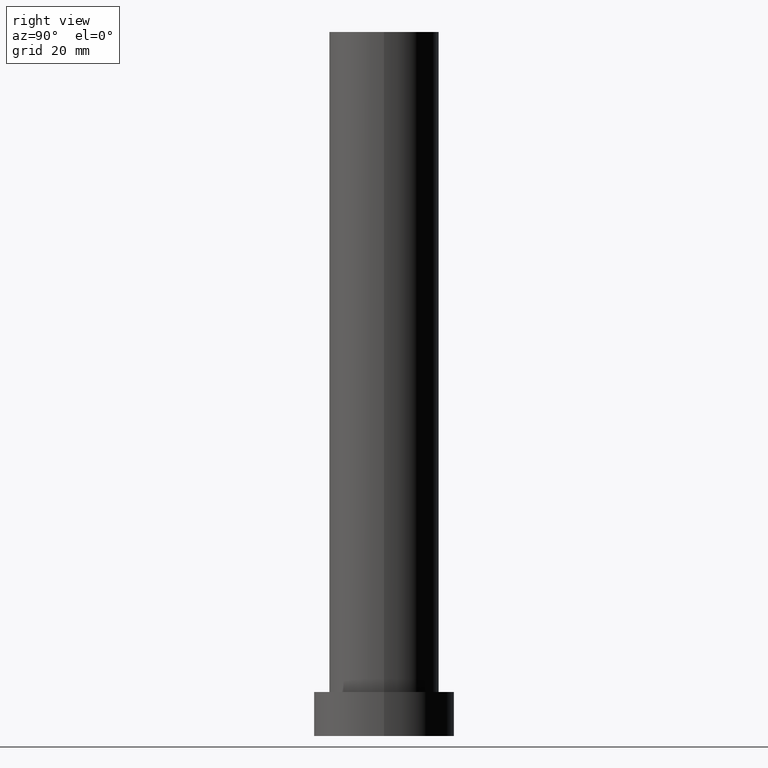
[diagram: clean part render]
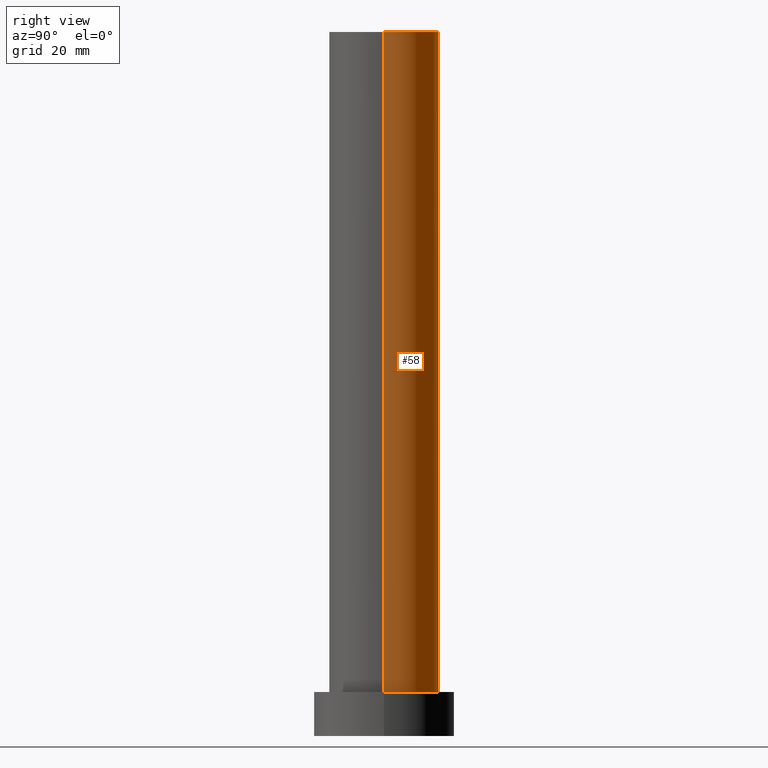
[diagram: same view with one face highlighted and labeled with its STEP entity id]
A machine part, right view. The second image highlights one B-rep face of the part: STEP entity #58.
In plain terms, the highlighted cylindrical surface (partial cylindrical patch) has radius 12.5 mm, axis along (-0, -0, -1).
Its self-contained STEP definition (entity closure, byte-faithful):
#4 = AXIS2_PLACEMENT_3D ( 'NONE', #246, #28, #69 ) ;
#11 = ORIENTED_EDGE ( 'NONE', *, *, #53, .F. ) ;
#17 = EDGE_CURVE ( 'NONE', #49, #212, #213, .T. ) ;
#24 = CARTESIAN_POINT ( 'NONE',  ( -12.50000000000000000, 0.000000000000000000, 10.00000000000000000 ) ) ;
#27 = CARTESIAN_POINT ( 'NONE',  ( 0.000000000000000000, 0.000000000000000000, 10.00000000000000000 ) ) ;
#28 = DIRECTION ( 'NONE',  ( 0.000000000000000000, 0.000000000000000000, 1.000000000000000000 ) ) ;
#49 = VERTEX_POINT ( 'NONE', #177 ) ;
#53 = EDGE_CURVE ( 'NONE', #77, #130, #195, .T. ) ;
#55 = AXIS2_PLACEMENT_3D ( 'NONE', #27, #64, #71 ) ;
#58 = ADVANCED_FACE ( 'NONE', ( #96 ), #216, .T. ) ;
#63 = CIRCLE ( 'NONE', #4, 12.50000000000000000 ) ;
#64 = DIRECTION ( 'NONE',  ( 0.000000000000000000, 0.000000000000000000, 1.000000000000000000 ) ) ;
#69 = DIRECTION ( 'NONE',  ( 1.000000000000000000, 0.000000000000000000, 0.000000000000000000 ) ) ;
#71 = DIRECTION ( 'NONE',  ( 1.000000000000000000, 0.000000000000000000, 0.000000000000000000 ) ) ;
#77 = VERTEX_POINT ( 'NONE', #220 ) ;
#89 = DIRECTION ( 'NONE',  ( -0.000000000000000000, -0.000000000000000000, -1.000000000000000000 ) ) ;
#96 = FACE_OUTER_BOUND ( 'NONE', #228, .T. ) ;
#99 = VECTOR ( 'NONE', #89, 1000.000000000000000 ) ;
#101 = DIRECTION ( 'NONE',  ( -0.000000000000000000, -0.000000000000000000, -1.000000000000000000 ) ) ;
#113 = CARTESIAN_POINT ( 'NONE',  ( 12.50000000000000000, 1.530808498934191521E-15, 160.0000000000000000 ) ) ;
#130 = VERTEX_POINT ( 'NONE', #24 ) ;
#132 = CIRCLE ( 'NONE', #55, 12.50000000000000000 ) ;
#135 = DIRECTION ( 'NONE',  ( -0.000000000000000000, -0.000000000000000000, -1.000000000000000000 ) ) ;
#137 = VECTOR ( 'NONE', #135, 1000.000000000000000 ) ;
#150 = ORIENTED_EDGE ( 'NONE', *, *, #233, .F. ) ;
#162 = DIRECTION ( 'NONE',  ( -1.000000000000000000, 0.000000000000000000, 0.000000000000000000 ) ) ;
#175 = CARTESIAN_POINT ( 'NONE',  ( -12.50000000000000000, 0.000000000000000000, 160.0000000000000000 ) ) ;
#177 = CARTESIAN_POINT ( 'NONE',  ( 12.50000000000000000, 1.530808498934191521E-15, 160.0000000000000000 ) ) ;
#185 = CARTESIAN_POINT ( 'NONE',  ( 12.50000000000000000, 1.530808498934191521E-15, 10.00000000000000000 ) ) ;
#189 = EDGE_CURVE ( 'NONE', #212, #130, #132, .T. ) ;
#195 = LINE ( 'NONE', #175, #137 ) ;
#212 = VERTEX_POINT ( 'NONE', #185 ) ;
#213 = LINE ( 'NONE', #113, #99 ) ;
#216 = CYLINDRICAL_SURFACE ( 'NONE', #218, 12.50000000000000000 ) ;
#218 = AXIS2_PLACEMENT_3D ( 'NONE', #254, #101, #162 ) ;
#220 = CARTESIAN_POINT ( 'NONE',  ( -12.50000000000000000, 0.000000000000000000, 160.0000000000000000 ) ) ;
#228 = EDGE_LOOP ( 'NONE', ( #150, #249, #231, #11 ) ) ;
#231 = ORIENTED_EDGE ( 'NONE', *, *, #189, .T. ) ;
#233 = EDGE_CURVE ( 'NONE', #49, #77, #63, .T. ) ;
#246 = CARTESIAN_POINT ( 'NONE',  ( 0.000000000000000000, 0.000000000000000000, 160.0000000000000000 ) ) ;
#249 = ORIENTED_EDGE ( 'NONE', *, *, #17, .T. ) ;
#254 = CARTESIAN_POINT ( 'NONE',  ( 0.000000000000000000, 0.000000000000000000, 160.0000000000000000 ) ) ;